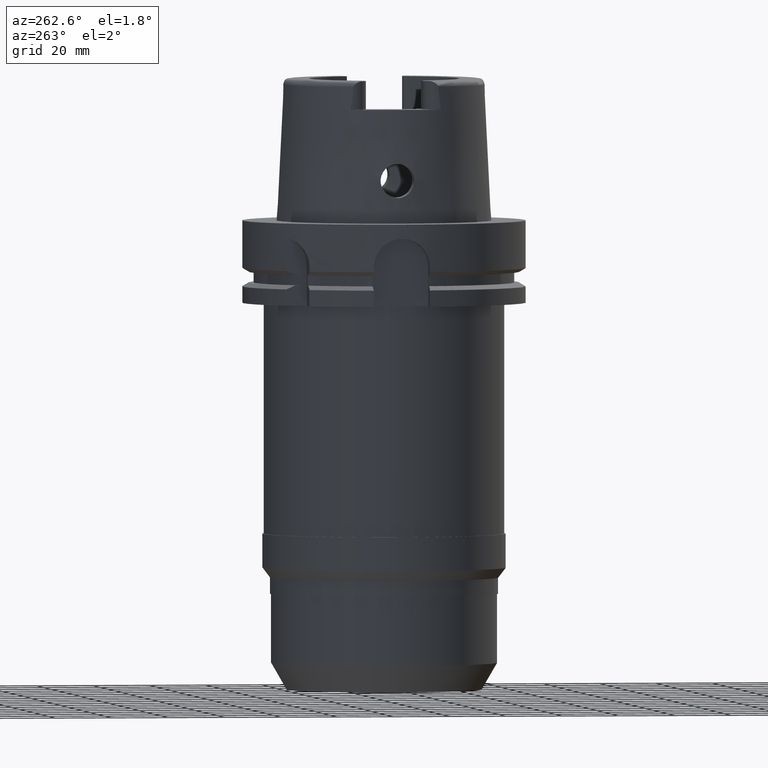
[diagram: clean part render]
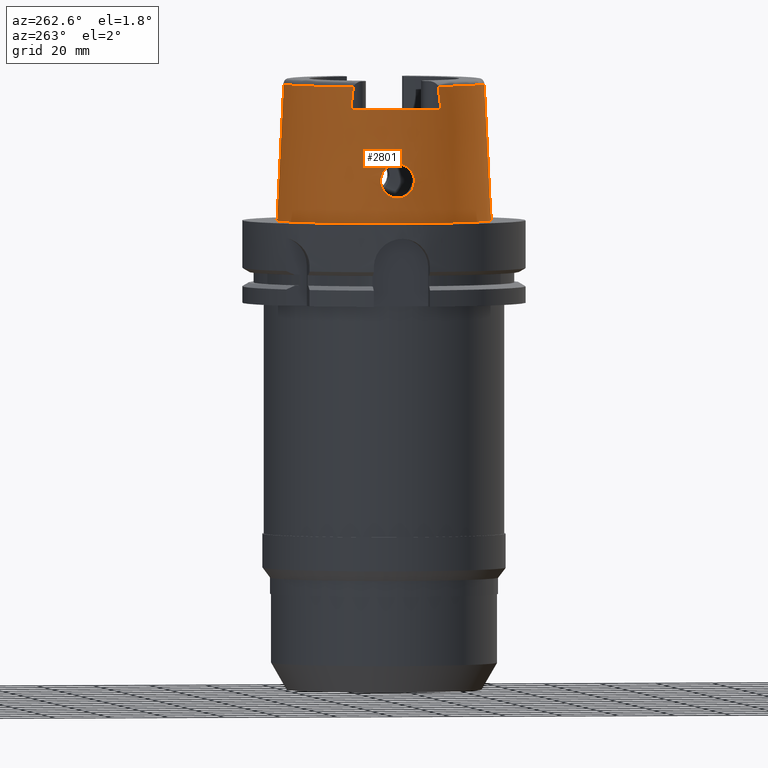
[diagram: same view with one face highlighted and labeled with its STEP entity id]
A machine part, auxiliary view. The second image highlights one B-rep face of the part: STEP entity #2801.
In plain terms, the highlighted conical surface has half-angle 2.862 deg.
Its self-contained STEP definition (entity closure, byte-faithful):
#130=CARTESIAN_POINT('',(0.E0,0.E0,4.E1));
#131=DIRECTION('',(0.E0,0.E0,-1.E0));
#132=DIRECTION('',(-8.958345712660E-1,-4.443876921391E-1,0.E0));
#133=AXIS2_PLACEMENT_3D('',#130,#131,#132);
#221=CARTESIAN_POINT('',(-3.224999491821E1,-1.506448480682E1,4.809973263497E1));
#281=CARTESIAN_POINT('',(0.E0,0.E0,4.809987853799E1));
#282=DIRECTION('',(0.E0,0.E0,-1.E0));
#283=DIRECTION('',(0.E0,-1.E0,0.E0));
#284=AXIS2_PLACEMENT_3D('',#281,#282,#283);
#289=CARTESIAN_POINT('',(-3.224999876012E1,-1.599794043148E1,4.E1));
#290=CARTESIAN_POINT('',(-3.224999876012E1,-1.589618560063E1,4.090434232027E1));
#291=CARTESIAN_POINT('',(-3.224999990104E1,-1.569149929480E1,4.271014757173E1));
#292=CARTESIAN_POINT('',(-3.225000220619E1,-1.538028254465E1,4.541006270163E1));
#293=CARTESIAN_POINT('',(-3.224999491821E1,-1.517027181508E1,4.720433970171E1));
#294=CARTESIAN_POINT('',(-3.224999491821E1,-1.506448480682E1,4.809973263497E1));
#299=DIRECTION('',(5.154182075151E-5,-4.993927430816E-2,-9.987522546783E-1));
#300=VECTOR('',#299,4.815996991514E1);
#301=CARTESIAN_POINT('',(-2.482252536761E-3,-3.559494263425E1,
4.809987853799E1));
#302=LINE('',#301,#300);
#306=CARTESIAN_POINT('',(-3.225000136841E1,1.506443228428E1,4.809991920216E1));
#307=CARTESIAN_POINT('',(-3.225000136841E1,1.517024628798E1,4.720430023926E1));
#308=CARTESIAN_POINT('',(-3.225000007421E1,1.538032523702E1,4.541024583613E1));
#309=CARTESIAN_POINT('',(-3.224999768767E1,1.569154926883E1,4.271027466999E1));
#310=CARTESIAN_POINT('',(-3.225000534596E1,1.589614940559E1,4.090439636549E1));
#311=CARTESIAN_POINT('',(-3.225000534596E1,1.599791057085E1,4.E1));
#326=DIRECTION('',(-5.154182075159E-5,4.993927430816E-2,-9.987522546783E-1));
#327=VECTOR('',#326,4.815996991514E1);
#328=CARTESIAN_POINT('',(2.482252536765E-3,3.559494263425E1,4.809987853799E1));
#329=LINE('',#328,#327);
#516=CARTESIAN_POINT('',(-3.694998175923E1,0.E0,2.1E1));
#517=CARTESIAN_POINT('',(-3.694998175923E1,-5.226151544275E-1,2.1E1));
#518=CARTESIAN_POINT('',(-3.693415883066E1,-1.569283594547E0,2.086254047882E1));
#519=CARTESIAN_POINT('',(-3.687102814709E1,-3.035578280701E0,2.025590919082E1));
#520=CARTESIAN_POINT('',(-3.679107815661E1,-4.299423165623E0,1.928437236445E1));
#521=CARTESIAN_POINT('',(-3.672628077547E1,-5.264351883017E0,1.802059808965E1));
#522=CARTESIAN_POINT('',(-3.670713273208E1,-5.866260849362E0,1.655301636502E1));
#523=CARTESIAN_POINT('',(-3.675256144895E1,-6.067418344788E0,1.499673304645E1));
#524=CARTESIAN_POINT('',(-3.686527229061E1,-5.864059434472E0,1.343869109096E1));
#525=CARTESIAN_POINT('',(-3.703215089188E1,-5.261469678763E0,1.197515229111E1));
#526=CARTESIAN_POINT('',(-3.722294152906E1,-4.296959989315E0,1.071273304772E1));
#527=CARTESIAN_POINT('',(-3.739936661489E1,-3.027192661094E0,9.738746348027E0));
#528=CARTESIAN_POINT('',(-3.752129344415E1,-1.559270130618E0,9.135186382278E0));
#529=CARTESIAN_POINT('',(-3.755000165825E1,-5.183622842921E-1,9.E0));
#530=CARTESIAN_POINT('',(-3.755000165825E1,1.432651546991E-13,9.E0));
#580=CARTESIAN_POINT('',(-3.755000165825E1,1.432651546991E-13,9.E0));
#581=CARTESIAN_POINT('',(-3.755000165825E1,5.179301619961E-1,9.E0));
#582=CARTESIAN_POINT('',(-3.752125944570E1,1.555077331625E0,9.135411887377E0));
#583=CARTESIAN_POINT('',(-3.740155077442E1,3.004526202992E0,9.727864763201E0));
#584=CARTESIAN_POINT('',(-3.722757989273E1,4.268920233850E0,1.068558386112E1));
#585=CARTESIAN_POINT('',(-3.703637340229E1,5.243949718183E0,1.194294614629E1));
#586=CARTESIAN_POINT('',(-3.686682564948E1,5.860690436401E0,1.341934550610E1));
#587=CARTESIAN_POINT('',(-3.675238330926E1,6.068754357890E0,1.499577096035E1));
#588=CARTESIAN_POINT('',(-3.670702252535E1,5.864274387481E0,1.656182701056E1));
#589=CARTESIAN_POINT('',(-3.672655818588E1,5.260438843816E0,1.802590021540E1));
#590=CARTESIAN_POINT('',(-3.679089318060E1,4.301907725651E0,1.928073154207E1));
#591=CARTESIAN_POINT('',(-3.687062492906E1,3.042870602631E0,2.025180200434E1));
#592=CARTESIAN_POINT('',(-3.693406981327E1,1.573591528133E0,2.086180286016E1));
#593=CARTESIAN_POINT('',(-3.694998175923E1,5.243304985366E-1,2.1E1));
#594=CARTESIAN_POINT('',(-3.694998175923E1,0.E0,2.1E1));
#2027=CARTESIAN_POINT('',(0.E0,0.E0,1.023181539495E-12));
#2028=DIRECTION('',(0.E0,0.E0,1.E0));
#2029=DIRECTION('',(0.E0,1.E0,0.E0));
#2030=AXIS2_PLACEMENT_3D('',#2027,#2028,#2029);
#2218=CARTESIAN_POINT('',(-3.225000136841E1,1.506443228428E1,4.809991920216E1));
#2223=CARTESIAN_POINT('',(0.E0,0.E0,4.809987853799E1));
#2224=DIRECTION('',(0.E0,0.E0,-1.E0));
#2225=DIRECTION('',(-9.060276961631E-1,4.232183996300E-1,0.E0));
#2226=AXIS2_PLACEMENT_3D('',#2223,#2224,#2225);
#2311=CARTESIAN_POINT('',(-3.224999876012E1,-1.599794043148E1,4.E1));
#2312=VERTEX_POINT('',#2311);
#2313=CARTESIAN_POINT('',(-3.224999999999E1,1.599793480981E1,4.E1));
#2314=VERTEX_POINT('',#2313);
#2316=VERTEX_POINT('',#2218);
#2317=CARTESIAN_POINT('',(0.E0,3.559494289391E1,4.809987853799E1));
#2318=VERTEX_POINT('',#2317);
#2322=VERTEX_POINT('',#221);
#2325=CARTESIAN_POINT('',(1.065814103640E-14,-3.559494289391E1,
4.809987853799E1));
#2326=VERTEX_POINT('',#2325);
#2327=CARTESIAN_POINT('',(0.E0,-3.800001658252E1,6.821210263297E-13));
#2328=VERTEX_POINT('',#2327);
#2329=CARTESIAN_POINT('',(0.E0,3.800001658252E1,1.023181539495E-12));
#2330=VERTEX_POINT('',#2329);
#2331=VERTEX_POINT('',#516);
#2332=VERTEX_POINT('',#530);
#2775=CARTESIAN_POINT('',(0.E0,0.E0,2.404993926900E1));
#2776=DIRECTION('',(0.E0,0.E0,-1.E0));
#2777=DIRECTION('',(0.E0,-1.E0,0.E0));
#2778=AXIS2_PLACEMENT_3D('',#2775,#2776,#2777);
#2779=CONICAL_SURFACE('',#2778,3.679747973821E1,2.8625E0);
#2780=ORIENTED_EDGE('',*,*,#2684,.F.);
#2781=ORIENTED_EDGE('',*,*,#2767,.T.);
#2782=ORIENTED_EDGE('',*,*,#2757,.F.);
#2784=ORIENTED_EDGE('',*,*,#2783,.T.);
#2786=ORIENTED_EDGE('',*,*,#2785,.F.);
#2788=ORIENTED_EDGE('',*,*,#2787,.F.);
#2790=ORIENTED_EDGE('',*,*,#2789,.F.);
#2792=ORIENTED_EDGE('',*,*,#2791,.T.);
#2793=EDGE_LOOP('',(#2780,#2781,#2782,#2784,#2786,#2788,#2790,#2792));
#2794=FACE_OUTER_BOUND('',#2793,.F.);
#2796=ORIENTED_EDGE('',*,*,#2795,.F.);
#2798=ORIENTED_EDGE('',*,*,#2797,.F.);
#2799=EDGE_LOOP('',(#2796,#2798));
#2800=FACE_BOUND('',#2799,.F.);
#134=CIRCLE('',#133,3.599995025244E1);
#285=CIRCLE('',#284,3.559494289391E1);
#295=B_SPLINE_CURVE_WITH_KNOTS('',3,(#289,#290,#291,#292,#293,#294),
.UNSPECIFIED.,.F.,.F.,(4,1,1,4),(0.E0,3.333333333333E-1,6.666666666667E-1,1.E0),
.UNSPECIFIED.);
#312=B_SPLINE_CURVE_WITH_KNOTS('',3,(#306,#307,#308,#309,#310,#311),
.UNSPECIFIED.,.F.,.F.,(4,1,1,4),(0.E0,3.333333333333E-1,6.666666666667E-1,1.E0),
.UNSPECIFIED.);
#531=B_SPLINE_CURVE_WITH_KNOTS('',3,(#516,#517,#518,#519,#520,#521,#522,#523,
#524,#525,#526,#527,#528,#529,#530),.UNSPECIFIED.,.F.,.F.,(4,1,1,1,1,1,1,1,1,1,
1,1,4),(0.E0,8.333333333333E-2,1.666666666667E-1,2.5E-1,3.333333333333E-1,
4.166666666667E-1,5.E-1,5.833333333333E-1,6.666666666667E-1,7.5E-1,
8.333333333333E-1,9.166666666667E-1,1.E0),.UNSPECIFIED.);
#595=B_SPLINE_CURVE_WITH_KNOTS('',3,(#580,#581,#582,#583,#584,#585,#586,#587,
#588,#589,#590,#591,#592,#593,#594),.UNSPECIFIED.,.F.,.F.,(4,1,1,1,1,1,1,1,1,1,
1,1,4),(0.E0,8.333333333333E-2,1.666666666667E-1,2.5E-1,3.333333333333E-1,
4.166666666667E-1,5.E-1,5.833333333333E-1,6.666666666667E-1,7.5E-1,
8.333333333333E-1,9.166666666667E-1,1.E0),.UNSPECIFIED.);
#2031=CIRCLE('',#2030,3.800001658252E1);
#2227=CIRCLE('',#2226,3.559494289391E1);
#2684=EDGE_CURVE('',#2312,#2314,#134,.T.);
#2757=EDGE_CURVE('',#2326,#2322,#285,.T.);
#2767=EDGE_CURVE('',#2312,#2322,#295,.T.);
#2783=EDGE_CURVE('',#2326,#2328,#302,.T.);
#2785=EDGE_CURVE('',#2330,#2328,#2031,.T.);
#2787=EDGE_CURVE('',#2318,#2330,#329,.T.);
#2789=EDGE_CURVE('',#2316,#2318,#2227,.T.);
#2791=EDGE_CURVE('',#2316,#2314,#312,.T.);
#2795=EDGE_CURVE('',#2331,#2332,#531,.T.);
#2797=EDGE_CURVE('',#2332,#2331,#595,.T.);
#2801=ADVANCED_FACE('',(#2794,#2800),#2779,.T.);